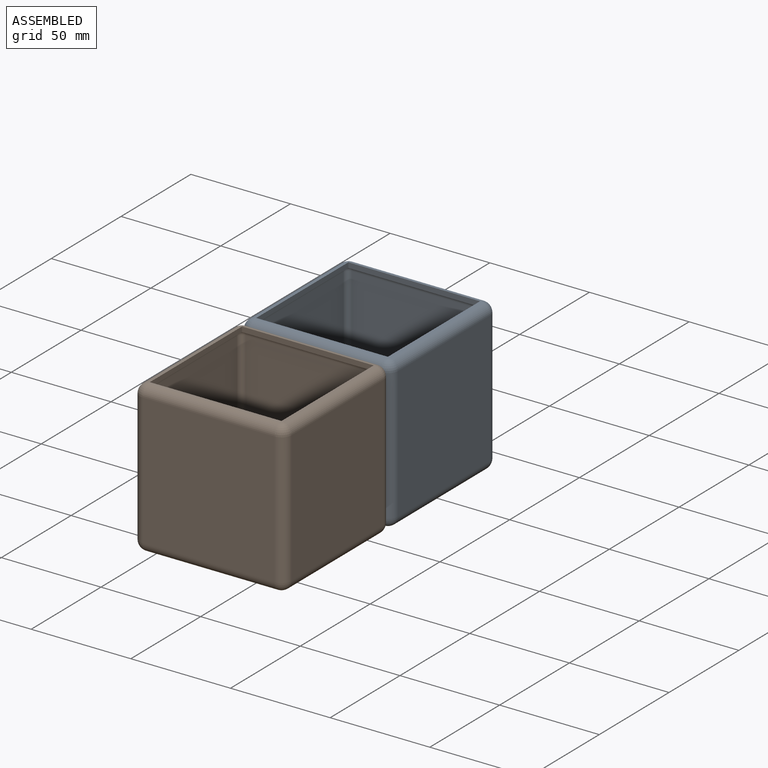
[diagram: assembled view]
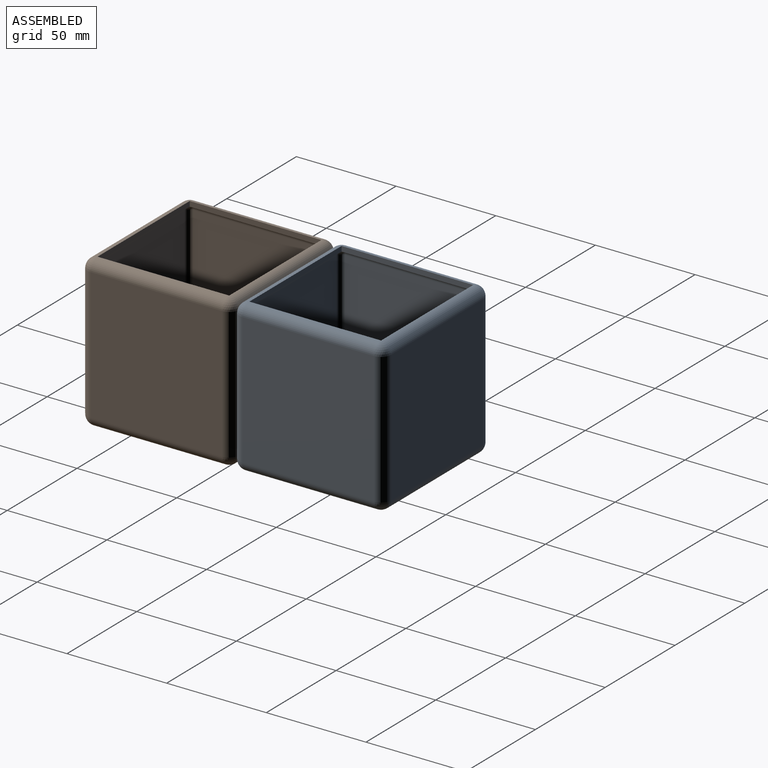
[diagram: assembled view, second angle]
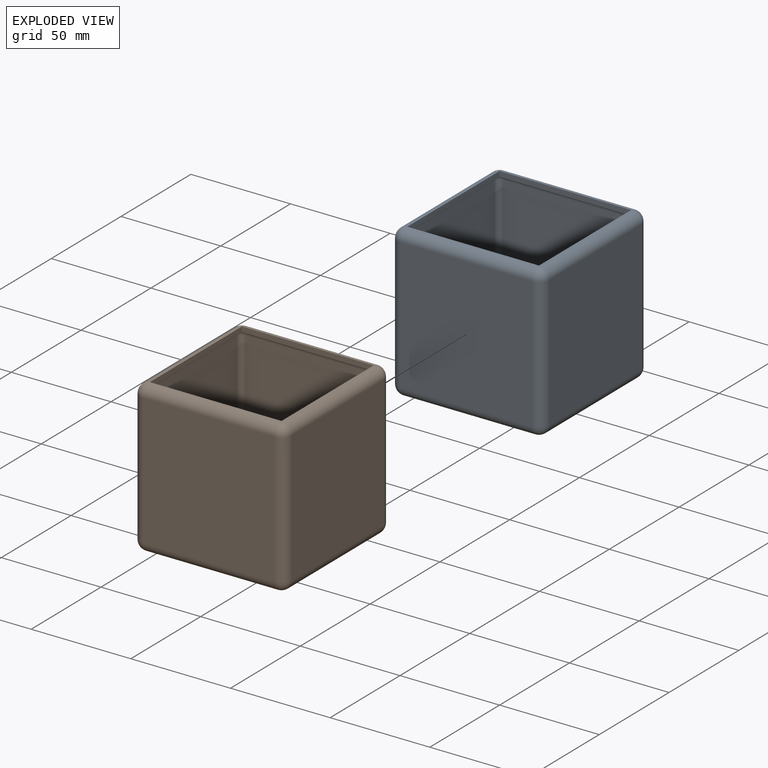
[diagram: exploded view]
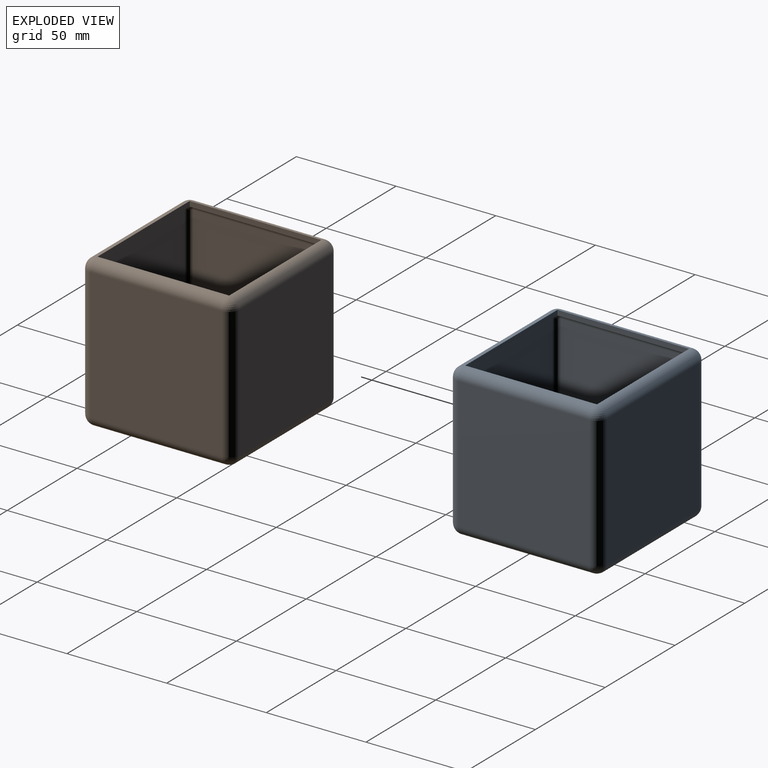
[diagram: exploded view, second angle]
ASSEMBLY  parts=2 mates=2
PART A: 54 faces, bbox 76.2x76.2x76.2 mm
  f0: plane 66.04x66.04mm, normal (-1,0,0), area 4361.3mm2, adj f13,f18,f21,f24
  f1: plane 66.04x66.04mm, normal (0,0,-1), area 4361.3mm2, adj f10,f19,f20,f24
  f2: plane 66.04x66.04mm, normal (1,0,0), area 4361.3mm2, adj f5,f9,f10,f11
  f3: plane 66.04x66.04mm, normal (0,-1,0), area 4361.3mm2, adj f8,f9,f18,f19
  f4: plane 66.04x66.04mm, normal (0,1,0), area 4361.3mm2, adj f11,f12,f20,f21
  f5: cylinder r=5.08mm len=66.04mm, axis (0,1,0), area 527mm2, adj f2,f6,f7,f28
  f6: sphere r=5.08mm, area 40.5mm2, adj f5,f8,f9
  f7: sphere r=5.08mm, area 40.5mm2, adj f5,f11,f12
  f8: cylinder r=5.08mm len=66.04mm, axis (1,0,0), area 527mm2, adj f3,f6,f14,f25
  f9: cylinder r=5.08mm len=66.04mm, axis (0,0,-1), area 527mm2, adj f2,f3,f6,f15
  f10: cylinder r=5.08mm len=66.04mm, axis (0,-1,0), area 527mm2, adj f1,f2,f15,f16
  f11: cylinder r=5.08mm len=66.04mm, axis (0,0,1), area 527mm2, adj f2,f4,f7,f16
  f12: cylinder r=5.08mm len=66.04mm, axis (-1,0,0), area 527mm2, adj f4,f7,f17,f27
  f13: cylinder r=5.08mm len=66.04mm, axis (0,-1,0), area 527mm2, adj f0,f14,f17,f26
  f14: sphere r=5.08mm, area 40.5mm2, adj f8,f13,f18
  f15: sphere r=5.08mm, area 40.5mm2, adj f9,f10,f19
  f16: sphere r=5.08mm, area 40.5mm2, adj f10,f11,f20
  f17: sphere r=5.08mm, area 40.5mm2, adj f12,f13,f21
  f18: cylinder r=5.08mm len=66.04mm, axis (0,0,1), area 527mm2, adj f0,f3,f14,f22
  f19: cylinder r=5.08mm len=66.04mm, axis (-1,0,0), area 527mm2, adj f1,f3,f15,f22
  f20: cylinder r=5.08mm len=66.04mm, axis (1,0,0), area 527mm2, adj f1,f4,f16,f23
  f21: cylinder r=5.08mm len=66.04mm, axis (0,0,-1), area 527mm2, adj f0,f4,f17,f23
  f22: sphere r=5.08mm, area 40.5mm2, adj f18,f19,f24
  f23: sphere r=5.08mm, area 40.5mm2, adj f20,f21,f24
  f24: cylinder r=5.08mm len=66.04mm, axis (0,1,0), area 527mm2, adj f0,f1,f22,f23
  f25: plane 66.04x2.54mm, normal (0,1,0), area 167.7mm2, adj f8,f26,f28,f37
  f26: plane 66.04x2.54mm, normal (1,0,0), area 167.7mm2, adj f13,f25,f27,f42
  f27: plane 66.04x2.54mm, normal (0,-1,0), area 167.7mm2, adj f12,f26,f28,f41
  f28: plane 66.04x2.54mm, normal (-1,0,0), area 167.7mm2, adj f5,f25,f27,f34
  f29: plane 66.04x66.04mm, normal (1,0,0), area 4361.3mm2, adj f42,f47,f50,f53
  f30: plane 66.04x66.04mm, normal (0,0,1), area 4361.3mm2, adj f39,f48,f49,f53
  f31: plane 66.04x66.04mm, normal (-1,0,0), area 4361.3mm2, adj f34,f38,f39,f40
  f32: plane 66.04x66.04mm, normal (0,1,0), area 4361.3mm2, adj f37,f38,f47,f48
  f33: plane 66.04x66.04mm, normal (0,-1,0), area 4361.3mm2, adj f40,f41,f49,f50
  f34: cylinder r=2.54mm len=66.04mm, axis (0,1,0), area 263.5mm2, adj f28,f31,f35,f36
  f35: sphere r=2.54mm, area 10.1mm2, adj f34,f37,f38
  f36: sphere r=2.54mm, area 10.1mm2, adj f34,f40,f41
  f37: cylinder r=2.54mm len=66.04mm, axis (1,0,0), area 263.5mm2, adj f25,f32,f35,f43
  f38: cylinder r=2.54mm len=66.04mm, axis (0,0,-1), area 263.5mm2, adj f31,f32,f35,f44
  f39: cylinder r=2.54mm len=66.04mm, axis (0,-1,0), area 263.5mm2, adj f30,f31,f44,f45
  f40: cylinder r=2.54mm len=66.04mm, axis (0,0,1), area 263.5mm2, adj f31,f33,f36,f45
  f41: cylinder r=2.54mm len=66.04mm, axis (-1,0,0), area 263.5mm2, adj f27,f33,f36,f46
  f42: cylinder r=2.54mm len=66.04mm, axis (0,-1,0), area 263.5mm2, adj f26,f29,f43,f46
  f43: sphere r=2.54mm, area 10.1mm2, adj f37,f42,f47
  f44: sphere r=2.54mm, area 10.1mm2, adj f38,f39,f48
  f45: sphere r=2.54mm, area 10.1mm2, adj f39,f40,f49
  f46: sphere r=2.54mm, area 10.1mm2, adj f41,f42,f50
  f47: cylinder r=2.54mm len=66.04mm, axis (0,0,1), area 263.5mm2, adj f29,f32,f43,f51
  f48: cylinder r=2.54mm len=66.04mm, axis (-1,0,0), area 263.5mm2, adj f30,f32,f44,f51
  f49: cylinder r=2.54mm len=66.04mm, axis (1,0,0), area 263.5mm2, adj f30,f33,f45,f52
  f50: cylinder r=2.54mm len=66.04mm, axis (0,0,-1), area 263.5mm2, adj f29,f33,f46,f52
  f51: sphere r=2.54mm, area 10.1mm2, adj f47,f48,f53
  f52: sphere r=2.54mm, area 10.1mm2, adj f49,f50,f53
  f53: cylinder r=2.54mm len=66.04mm, axis (0,1,0), area 263.5mm2, adj f29,f30,f51,f52
PART B: same geometry as A
PLACE A t=(-67.67,-4.73,-5.87)mm
PLACE B t=(-67.67,-80.93,-5.87)mm
MATE parallel A.f3 <-> B.f4  axis (0,-1,0) through (-67.67,-42.83,-5.87)mm
MATE planar A.f2 <-> B.f2  axis (1,0,0) through (-29.57,-4.73,-5.87)mm
